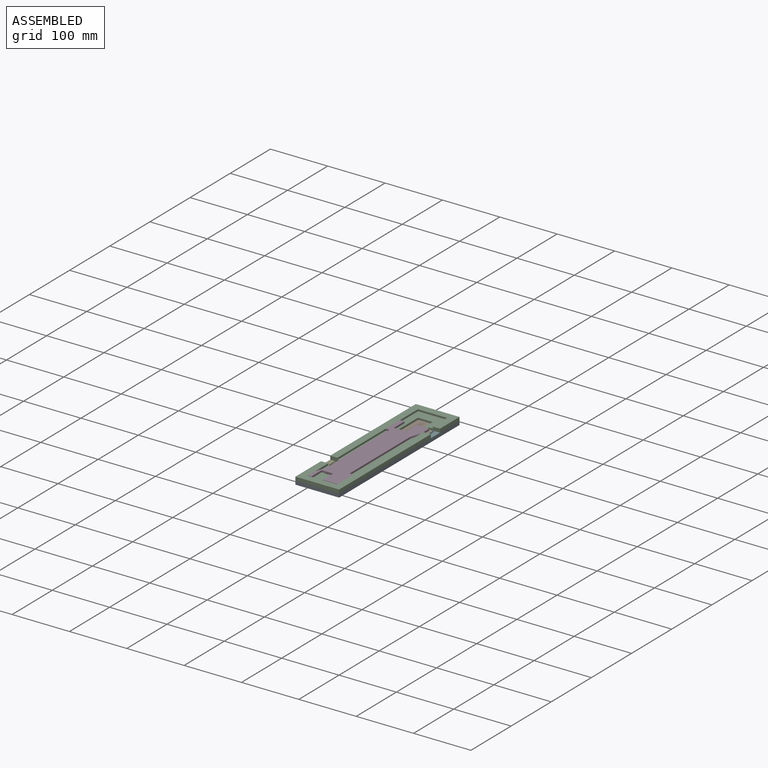
[diagram: assembled view]
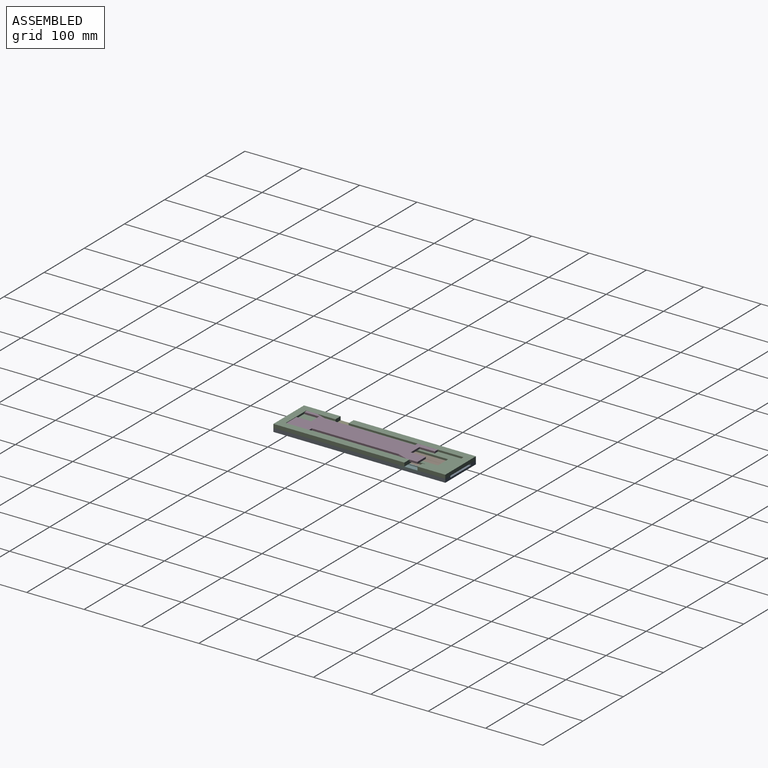
[diagram: assembled view, second angle]
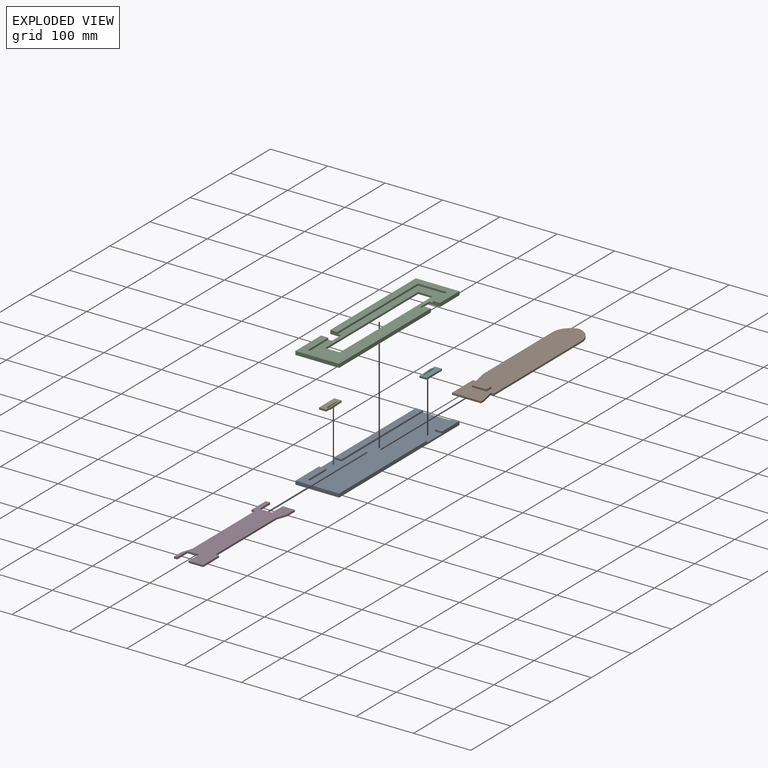
[diagram: exploded view]
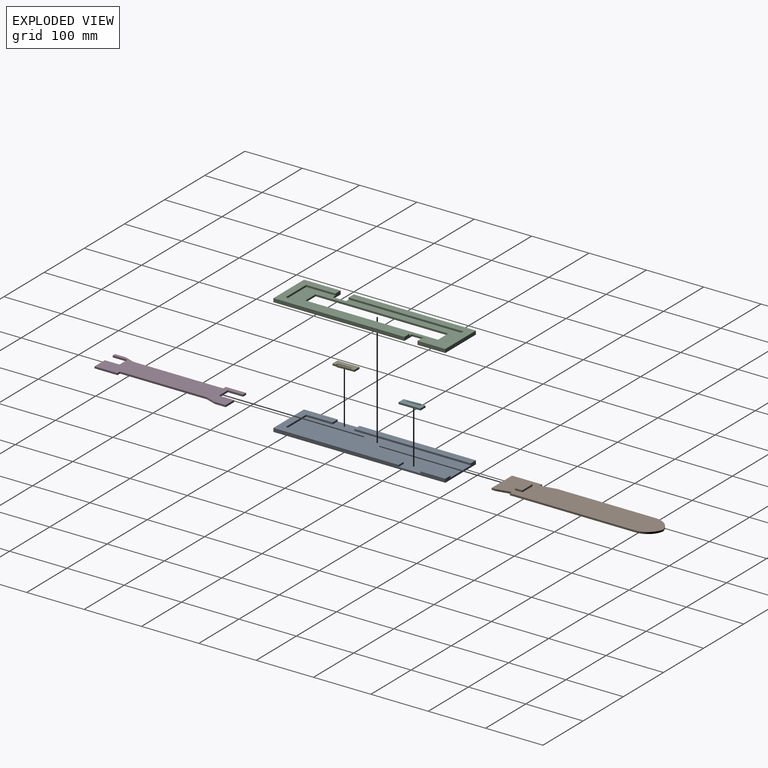
[diagram: exploded view, second angle]
ASSEMBLY  parts=6 mates=5
PART A: 18 faces, bbox 76.2x299.7x6.4 mm
  f0: plane 43.39x12.7mm, normal (0,0,1), area 551.1mm2, adj f7,f9,f16,f17
  f1: plane 205.53x3.18mm, normal (-1,0,0), area 652.6mm2, adj f3,f6,f10,f15
  f2: plane 202.95x3.18mm, normal (1,0,0), area 644.4mm2, adj f6,f12,f13,f17
  f3: plane 218.23x76.2mm, normal (0,0,1), area 4161.8mm2, adj f1,f4,f5,f7,f10,f11,f14,f15
  f4: plane 299.72x6.35mm, normal (-1,0,0), area 1782.3mm2, adj f3,f5,f6,f8,f12,f13,f14,f17
  f5: plane 76.2x6.35mm, normal (0,-1,0), area 483.9mm2, adj f3,f4,f7,f8
  f6: plane 287.02x76.2mm, normal (0,0,1), area 15548.4mm2, adj f1,f2,f4,f7,f9,f10,f11,f13
  f7: plane 299.72x6.35mm, normal (1,0,0), area 1782.3mm2, adj f0,f3,f5,f6,f8,f15,f16,f17
  f8: plane 299.72x76.2mm, normal (0,0,-1), area 22838.7mm2, adj f4,f5,f7,f17
  f9: plane 43.39x3.18mm, normal (-1,0,0), area 137.8mm2, adj f0,f6,f16,f17
  f10: plane 50.8x3.18mm, normal (0,1,0), area 161.3mm2, adj f1,f3,f6,f11
  f11: plane 45.97x3.18mm, normal (1,0,0), area 146mm2, adj f3,f6,f10,f14
  f12: plane 202.95x12.7mm, normal (0,0,1), area 2577.4mm2, adj f2,f4,f13,f17
  f13: plane 12.7x3.18mm, normal (0,-1,0), area 40.3mm2, adj f2,f4,f6,f12
  f14: plane 12.7x3.18mm, normal (0,1,0), area 40.3mm2, adj f3,f4,f6,f11
  f15: plane 12.7x3.18mm, normal (0,1,0), area 40.3mm2, adj f1,f3,f6,f7
  f16: plane 12.7x3.18mm, normal (0,-1,0), area 40.3mm2, adj f0,f6,f7,f9
  f17: plane 76.2x6.35mm, normal (0,1,0), area 322.6mm2, adj f0,f2,f4,f6,f7,f8,f9,f12
PART B: 20 faces, bbox 50.8x281.3x6.4 mm
  f0: plane 171.2x3.18mm, normal (-1,0,0), area 543.5mm2, adj f2,f6,f8,f18
  f1: plane 6.14x3.18mm, normal (1,0,0), area 19.5mm2, adj f2,f4,f8,f19
  f2: plane 281.3x50.8mm, normal (0,0,1), area 13440.3mm2, adj f0,f1,f3,f4,f5,f6,f7,f9
  f3: plane 218.65x3.18mm, normal (1,0,0), area 694.2mm2, adj f2,f7,f8,f14
  f4: plane 50.8x3.18mm, normal (0,-1,0), area 161.3mm2, adj f1,f2,f5,f8
  f5: plane 52.32x3.18mm, normal (-1,0,0), area 166.1mm2, adj f2,f4,f8,f15
  f6: cylinder r=31.75mm len=31.11mm, axis (0,0,1), area 138mm2, adj f0,f2,f7,f8
  f7: cylinder r=31.75mm len=31.11mm, axis (0,0,1), area 138mm2, adj f2,f3,f6,f8
  f8: plane 281.3x50.8mm, normal (0,0,-1), area 13762.9mm2, adj f0,f1,f3,f4,f5,f6,f7,f14
  f9: plane 12.7x3.18mm, normal (-1,0,0), area 40.3mm2, adj f2,f10,f12,f13
  f10: plane 25.4x3.18mm, normal (0,-1,0), area 80.6mm2, adj f2,f9,f11,f13
  f11: plane 12.7x3.18mm, normal (1,0,0), area 40.3mm2, adj f2,f10,f12,f13
  f12: plane 25.4x3.18mm, normal (0,1,0), area 80.6mm2, adj f2,f9,f11,f13
  f13: plane 25.4x12.7mm, normal (0,0,1), area 322.6mm2, adj f9,f10,f11,f12
  f14: plane 5.08x3.18mm, normal (0,-1,0), area 16.1mm2, adj f2,f3,f8,f16
  f15: plane 5.08x3.18mm, normal (0,1,0), area 16.1mm2, adj f2,f5,f8,f17
  f16: plane 24.38x4.98mm, normal (0.98,0.2,0), area 79mm2, adj f2,f8,f14,f19
  f17: plane 25.7x4.99mm, normal (-0.98,-0.19,0), area 83.1mm2, adj f2,f8,f15,f18
  f18: cylinder r=5.08mm len=3.18mm, axis (0,0,1), area 3.1mm2, adj f0,f2,f8,f17
  f19: cylinder r=5.08mm len=3.18mm, axis (0,0,1), area 3.2mm2, adj f1,f2,f8,f16
PART C: 26 faces, bbox 76.2x299.7x6.4 mm
  f0: plane 274.32x50.8mm, normal (0,0,-1), area 7774.2mm2, adj f2,f3,f4,f5,f6,f7,f13,f14
  f1: plane 299.72x76.2mm, normal (0,0,1), area 16096.7mm2, adj f2,f3,f4,f5,f6,f7,f8,f9
  f2: plane 22.86x3.18mm, normal (-1,0,0), area 72.6mm2, adj f0,f1,f15,f16
  f3: plane 22.86x3.18mm, normal (1,0,0), area 72.6mm2, adj f0,f1,f13,f14
  f4: plane 231.14x3.18mm, normal (1,0,0), area 733.9mm2, adj f0,f1,f5,f7
  f5: plane 25.4x3.18mm, normal (0,-1,0), area 80.6mm2, adj f0,f1,f4,f6
  f6: plane 231.14x3.18mm, normal (-1,0,0), area 733.9mm2, adj f0,f1,f5,f7
  f7: plane 25.4x3.18mm, normal (0,1,0), area 80.6mm2, adj f0,f1,f4,f6
  f8: plane 213.11x6.35mm, normal (1,0,0), area 1353.2mm2, adj f1,f13,f17,f25
  f9: plane 48.51x6.35mm, normal (-1,0,0), area 308.1mm2, adj f1,f15,f17,f25
  f10: plane 63.75x6.35mm, normal (1,0,0), area 404.8mm2, adj f1,f12,f14,f21
  f11: plane 228.35x6.35mm, normal (-1,0,0), area 1450mm2, adj f1,f12,f16,f21
  f12: plane 76.2x6.35mm, normal (0,-1,0), area 483.9mm2, adj f1,f10,f11,f21
  f13: plane 19.05x6.35mm, normal (0,-1,0), area 100.8mm2, adj f0,f1,f3,f8,f22,f25
  f14: plane 19.05x6.35mm, normal (0,1,0), area 100.8mm2, adj f0,f1,f3,f10,f19,f21
  f15: plane 19.05x6.35mm, normal (0,-1,0), area 100.8mm2, adj f0,f1,f2,f9,f24,f25
  f16: plane 19.05x6.35mm, normal (0,1,0), area 100.8mm2, adj f0,f1,f2,f11,f20,f21
  f17: plane 76.2x6.35mm, normal (0,1,0), area 483.9mm2, adj f1,f8,f9,f25
  f18: plane 50.8x3.18mm, normal (0,1,0), area 161.3mm2, adj f0,f19,f20,f21
  f19: plane 51.05x3.18mm, normal (-1,0,0), area 162.1mm2, adj f0,f14,f18,f21
  f20: plane 215.65x3.18mm, normal (1,0,0), area 684.7mm2, adj f0,f16,f18,f21
  f21: plane 228.35x76.2mm, normal (0,0,-1), area 4354.8mm2, adj f10,f11,f12,f14,f16,f18,f19,f20
  f22: plane 200.41x3.18mm, normal (-1,0,0), area 636.3mm2, adj f0,f13,f23,f25
  f23: plane 50.8x3.18mm, normal (0,-1,0), area 161.3mm2, adj f0,f22,f24,f25
  f24: plane 35.81x3.18mm, normal (1,0,0), area 113.7mm2, adj f0,f15,f23,f25
  f25: plane 213.11x76.2mm, normal (0,0,-1), area 3967.7mm2, adj f8,f9,f13,f15,f17,f22,f23,f24
PART D: 22 faces, bbox 228.6x50.8x3.2 mm
  f0: plane 18.84x3.18mm, normal (0,-1,0), area 59.8mm2, adj f1,f19,f20,f21
  f1: plane 5.52x3.18mm, normal (1,0,0), area 17.5mm2, adj f0,f2,f20,f21
  f2: plane 25.66x3.18mm, normal (0,1,0), area 81.5mm2, adj f1,f3,f20,f21
  f3: plane 19.75x3.18mm, normal (1,0,0), area 62.7mm2, adj f2,f4,f20,f21
  f4: plane 25.66x3.18mm, normal (0,-1,0), area 81.5mm2, adj f3,f5,f20,f21
  f5: plane 25.53x3.18mm, normal (1,0,0), area 81.1mm2, adj f4,f6,f20,f21
  f6: plane 39.86x3.18mm, normal (0,1,0), area 126.6mm2, adj f5,f7,f20,f21
  f7: plane 6.35x3.18mm, normal (-1,0,0), area 20.2mm2, adj f6,f8,f20,f21
  f8: plane 151.53x3.18mm, normal (0,1,0), area 481.1mm2, adj f7,f9,f20,f21
  f9: plane 17.96x6.35mm, normal (0.33,0.94,0), area 60.5mm2, adj f8,f10,f20,f21
  f10: plane 19.25x3.18mm, normal (0,1,0), area 61.1mm2, adj f9,f11,f20,f21
  f11: plane 21.19x3.18mm, normal (-1,0,0), area 67.3mm2, adj f10,f12,f20,f21
  f12: plane 26.39x3.18mm, normal (0,-1,0), area 83.8mm2, adj f11,f13,f20,f21
  f13: plane 21.92x3.18mm, normal (-1,0,0), area 69.6mm2, adj f12,f14,f20,f21
  f14: plane 26.39x3.18mm, normal (0,1,0), area 83.8mm2, adj f13,f15,f20,f21
  f15: plane 7.68x3.18mm, normal (-1,0,0), area 24.4mm2, adj f14,f16,f20,f21
  f16: plane 35.45x3.18mm, normal (0,-1,0), area 112.6mm2, adj f15,f17,f20,f21
  f17: plane 6.35x3.18mm, normal (1,0,0), area 20.2mm2, adj f16,f18,f20,f21
  f18: plane 156.35x3.18mm, normal (0,-1,0), area 496.4mm2, adj f17,f19,f20,f21
  f19: plane 17.96x6.35mm, normal (-0.33,-0.94,0), area 60.5mm2, adj f0,f18,f20,f21
  f20: plane 228.6x50.8mm, normal (0,0,1), area 8458.4mm2, adj f0,f1,f2,f3,f4,f5,f6,f7
  f21: plane 228.6x50.8mm, normal (0,0,-1), area 8458.4mm2, adj f0,f1,f2,f3,f4,f5,f6,f7
PART E: 45 faces, bbox 14x38.1x3.2 mm
  f0: plane 5.38x3.18mm, normal (1,0.05,0), area 17.1mm2, adj f8,f9,f34,f41
  f1: plane 5.38x3.18mm, normal (1,0.05,0), area 17.1mm2, adj f8,f9,f29,f35
  f2: plane 4.06x3.18mm, normal (1,0.05,0), area 12.9mm2, adj f8,f9,f14,f27
  f3: plane 5.38x3.18mm, normal (1,0.05,0), area 17.1mm2, adj f8,f9,f21,f40
  f4: plane 5.38x3.18mm, normal (-1,-0.05,0), area 17.1mm2, adj f8,f9,f12,f44
  f5: plane 5.38x3.18mm, normal (-1,-0.05,0), area 17.1mm2, adj f8,f9,f36,f43
  f6: plane 4.64x3.18mm, normal (-1,-0.05,0), area 14.7mm2, adj f8,f9,f26,f32
  f7: plane 5.38x3.18mm, normal (-1,-0.05,0), area 17.1mm2, adj f8,f9,f24,f38
  f8: plane 38.1x14.01mm, normal (0,0,1), area 445.1mm2, adj f0,f1,f2,f3,f4,f5,f6,f7
  f9: plane 38.1x14.01mm, normal (0,0,-1), area 445.1mm2, adj f0,f1,f2,f3,f4,f5,f6,f7
  f10: plane 3.18x1.27mm, normal (0,-1,0), area 4mm2, adj f8,f9,f11,f20
  f11: plane 3.18x2.1mm, normal (-1,-0.05,0), area 6.7mm2, adj f8,f9,f10,f31
  f12: plane 3.18x2.54mm, normal (0.05,-1,0), area 8.1mm2, adj f4,f8,f9,f13
  f13: plane 3.18x2.54mm, normal (1,0.05,0), area 8.1mm2, adj f8,f9,f12,f23
  f14: plane 6.35x3.18mm, normal (1,0,0), area 20.2mm2, adj f2,f8,f9,f15
  f15: plane 12.7x3.18mm, normal (0,1,0), area 40.3mm2, adj f8,f9,f14,f16
  f16: plane 38.1x3.18mm, normal (-1,0,0), area 121mm2, adj f8,f9,f15,f17
  f17: plane 12.7x3.18mm, normal (0,-1,0), area 40.3mm2, adj f8,f9,f16,f18
  f18: plane 6.35x3.18mm, normal (1,0,0), area 20.2mm2, adj f8,f9,f17,f19
  f19: plane 3.81x3.18mm, normal (0,1,0), area 12.1mm2, adj f8,f9,f18,f20
  f20: plane 25.4x3.18mm, normal (1,0,0), area 80.6mm2, adj f8,f9,f10,f19
  f21: plane 3.18x1.27mm, normal (0.05,-1,0), area 4mm2, adj f3,f8,f9,f22
  f22: plane 3.18x0.3mm, normal (1,0.05,0), area 1mm2, adj f8,f9,f21,f23
  f23: plane 3.18x1.27mm, normal (-0.05,1,0), area 4mm2, adj f8,f9,f13,f22
  f24: plane 3.18x1.27mm, normal (-0.05,1,0), area 4mm2, adj f7,f8,f9,f25
  f25: plane 3.18x0.3mm, normal (-1,-0.05,0), area 1mm2, adj f8,f9,f24,f26
  f26: plane 3.18x1.27mm, normal (0.05,-1,0), area 4mm2, adj f6,f8,f9,f25
  f27: plane 3.18x1.27mm, normal (0.05,-1,0), area 4mm2, adj f2,f8,f9,f28
  f28: plane 3.18x0.3mm, normal (1,0.05,0), area 1mm2, adj f8,f9,f27,f29
  f29: plane 3.18x1.27mm, normal (-0.05,1,0), area 4mm2, adj f1,f8,f9,f28
  f30: plane 3.18x0.3mm, normal (-1,-0.05,0), area 1mm2, adj f8,f9,f31,f32
  f31: plane 3.18x1.27mm, normal (0.05,-1,0), area 4mm2, adj f8,f9,f11,f30
  f32: plane 3.18x1.27mm, normal (-0.05,1,0), area 4mm2, adj f6,f8,f9,f30
  f33: plane 3.18x0.3mm, normal (1,0.05,0), area 1mm2, adj f8,f9,f34,f35
  f34: plane 3.18x1.27mm, normal (-0.05,1,0), area 4mm2, adj f0,f8,f9,f33
  f35: plane 3.18x1.27mm, normal (0.05,-1,0), area 4mm2, adj f1,f8,f9,f33
  f36: plane 3.18x1.27mm, normal (-0.05,1,0), area 4mm2, adj f5,f8,f9,f37
  f37: plane 3.18x0.3mm, normal (-1,-0.05,0), area 1mm2, adj f8,f9,f36,f38
  f38: plane 3.18x1.27mm, normal (0.05,-1,0), area 4mm2, adj f7,f8,f9,f37
  f39: plane 3.18x0.3mm, normal (1,0.05,0), area 1mm2, adj f8,f9,f40,f41
  f40: plane 3.18x1.27mm, normal (-0.05,1,0), area 4mm2, adj f3,f8,f9,f39
  f41: plane 3.18x1.27mm, normal (0.05,-1,0), area 4mm2, adj f0,f8,f9,f39
  f42: plane 3.18x0.3mm, normal (-1,-0.05,0), area 1mm2, adj f8,f9,f43,f44
  f43: plane 3.18x1.27mm, normal (0.05,-1,0), area 4mm2, adj f5,f8,f9,f42
  f44: plane 3.18x1.27mm, normal (-0.05,1,0), area 4mm2, adj f4,f8,f9,f42
PART F: same geometry as E
PLACE A t=(-114.36,-316.76,-337.25)mm fixed
PLACE B t=(-139.76,-236.62,-337.25)mm
PLACE C rot(axis=(0,1,0),180deg) t=(-60.39,-233.57,-327.73)mm
PLACE D rot(axis=(0,0,-1),90deg) t=(-76.2,-188.83,-327.73)mm
PLACE E t=(-114.36,-258.08,-334.08)mm
PLACE F rot(axis=(0,0,-1),180deg) t=(-38.16,-60.43,-334.08)mm
MATE fastened E.f15 <-> A.f13  axis (0,1,0) through (-108.01,-219.98,-332.49)mm
MATE slider D.f5 <-> C.f18  axis (0,-1,0) through (-63.56,-303.13,-326.14)mm
MATE fastened F.f15 <-> A.f15  axis (0,-1,0) through (-44.51,-98.53,-332.49)mm
MATE slider A.f10 <-> B.f4  axis (0,1,0) through (-76.26,-304.06,-332.49)mm
MATE fastened A.f3 <-> C.f1  axis (0,0,1) through (-76.26,-316.76,-330.9)mm
